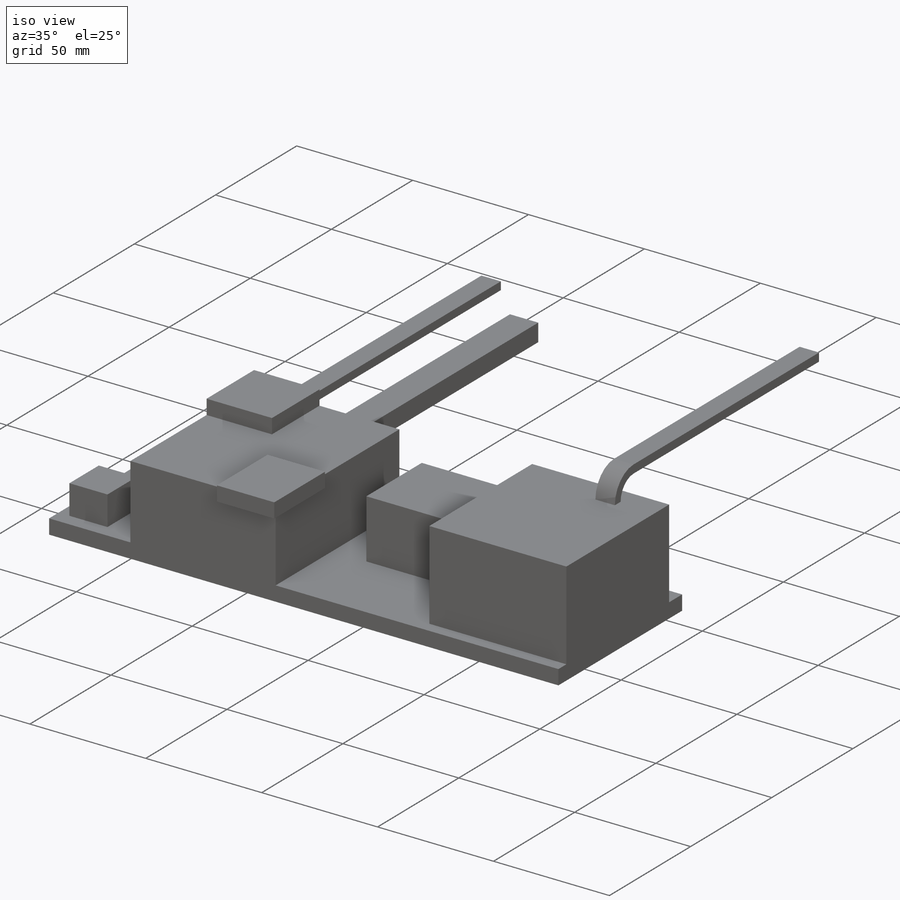
[diagram: iso view]
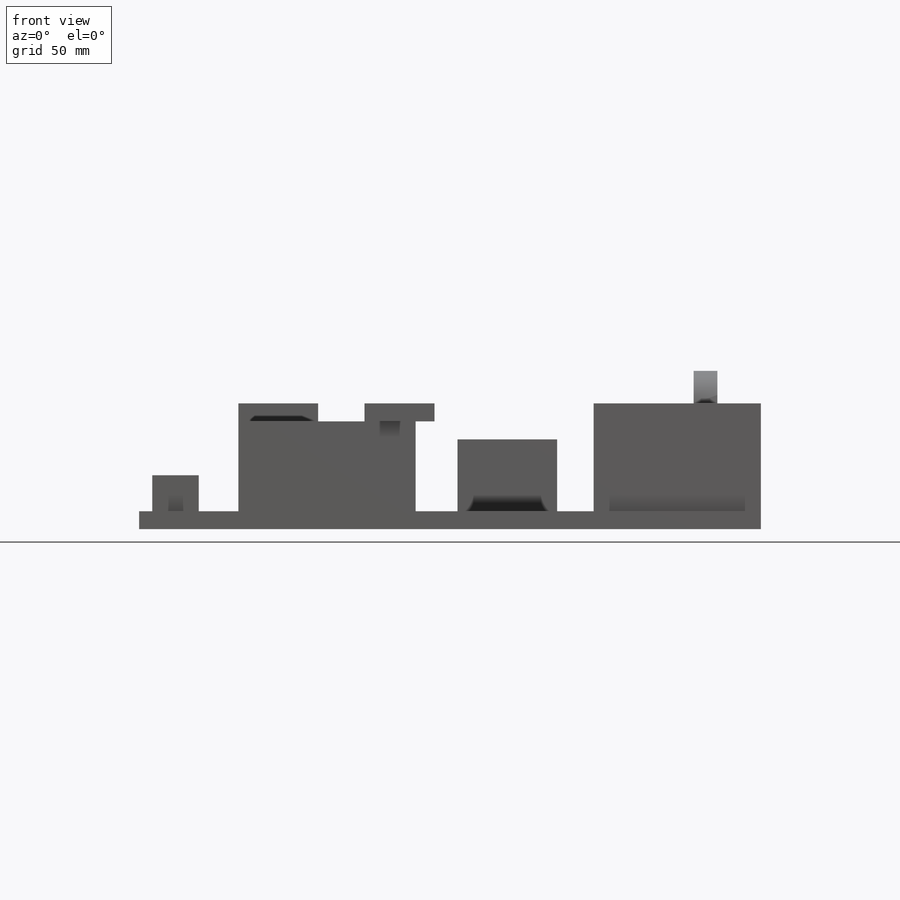
[diagram: front view]
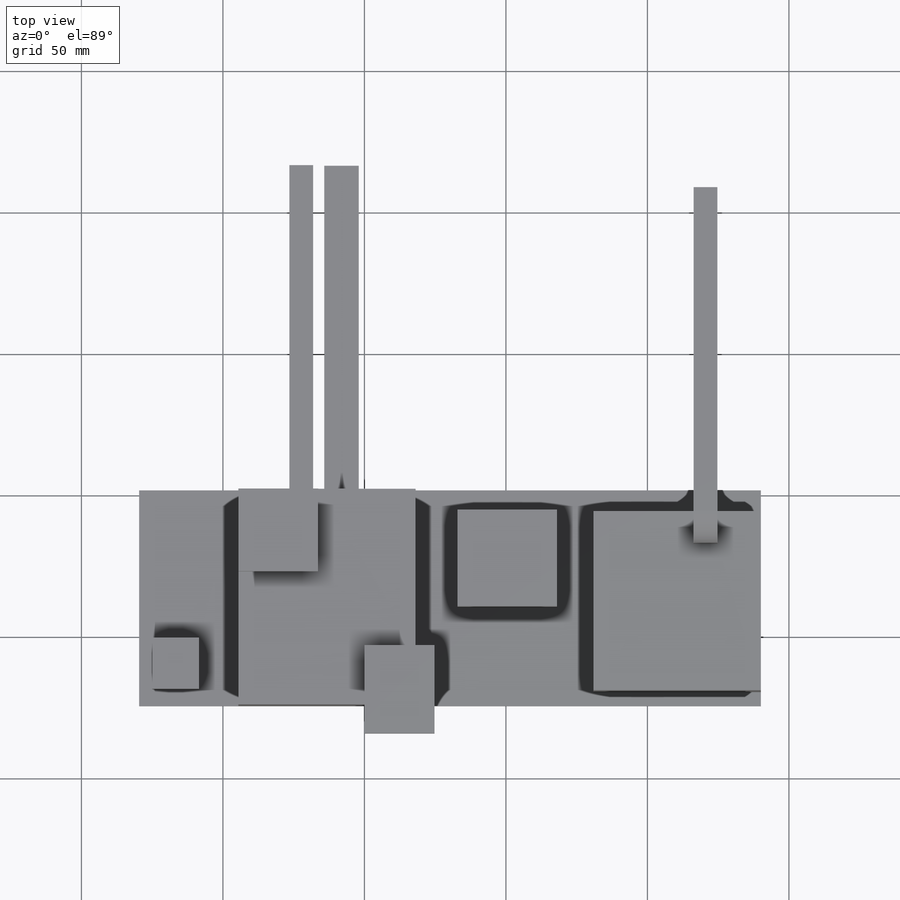
[diagram: top view]
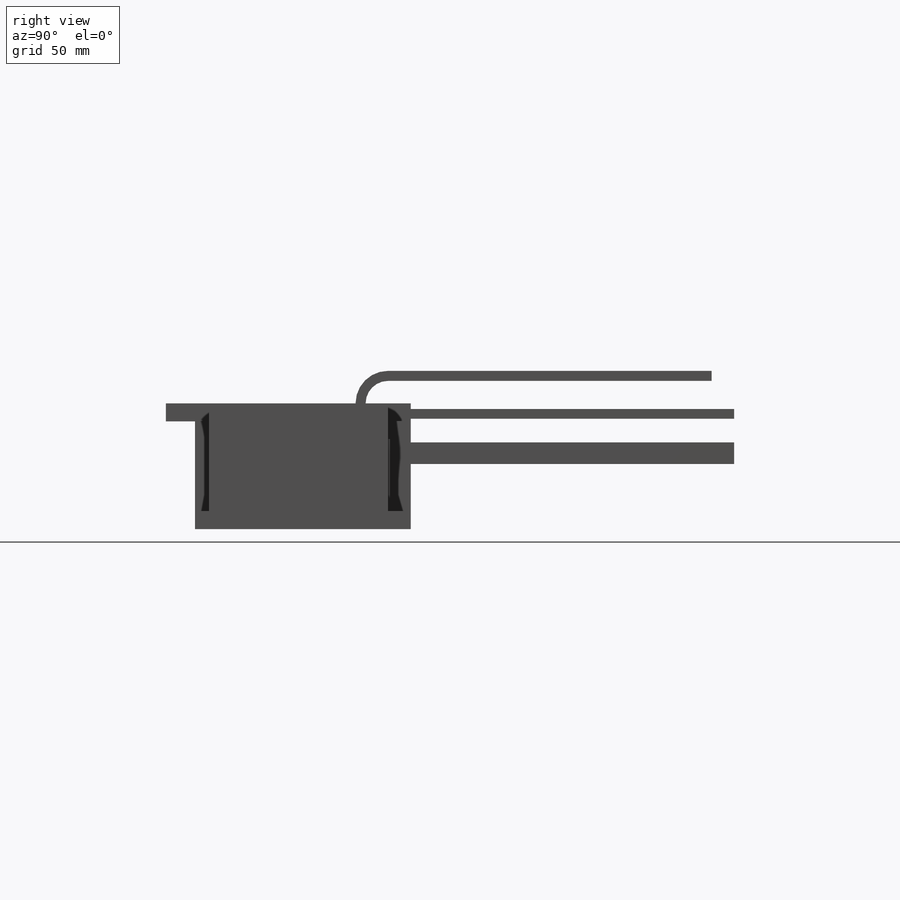
[diagram: right view]
SOLIDWORKS PART (.sldprt)
format: sldprt  version: not decoded by parser v0  size: 259,584 bytes
history: native  units: mm
features: sketch x10, extrude x9, material x1, revolve x1 (+11 scaffold rows collapsed)
feature tree (32):
  scaffold x11  (default folders/planes/origin — collapsed)
  material  "Material <not specified>"
  sketch  "Sketch1"  dims[D1=76.2mm D2=219.71mm]
  extrude  "Boss-Extrude1"  Depth=6.35mm
  sketch  "Sketch2"
  extrude  "Boss-Extrude2"  Depth=12.7mm
  sketch  "Sketch3"
  extrude  "Boss-Extrude3"  Depth=31.75mm
  sketch  "Sketch4"
  extrude  "Boss-Extrude4"  Depth=6.35mm
  sketch  "Sketch5"
  extrude  "Boss-Extrude5"  Depth=25.4mm
  sketch  "Sketch6"
  extrude  "Boss-Extrude6"  Depth=38.1mm
  sketch  "Sketch7"  dims[D1=3.556mm D2=8.382mm]
  revolve  "Revolve1"  Angle=90deg
  sketch  "Sketch8"
  extrude  "Boss-Extrude7"  Depth=114.3mm
  sketch  "Sketch9"  dims[D1=8.382mm D2=3.429mm]
  extrude  "Boss-Extrude8"  Depth=114.3mm
  sketch  "Sketch10"  dims[D1=7.62mm D2=~12.202797mm]
  extrude  "Boss-Extrude9"  Depth=114.3mm
decode coverage: 14 of 20 modeling features carry decoded parameters
note: ~ marks probable driven/reference dimensions
note: suppression state not decoded; provenance and decode notes live in map.json
